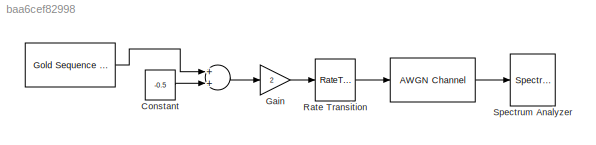
MODEL slx_baa6cef82998
KIND model
BLOCK [Reference]    REF=commchan3/AWGN
Channel
  EbNodB = 10
  EsNodB = 10
  InputProcessing = Columns as channels (frame based)
  Ports = [1, 1]
  Ps = 1
  SNRdB = 10
  SourceBlock = commchan3/AWGN\nChannel
  SourceType = AWGN Channel
  Tsym = 1
  UserDataPersistent = on
  bitsPerSym = 1
  noiseMode = Variance from mask
  seed = randseed
  variance = 1
BLOCK [Reference]     REF=commseqgen2/Gold Sequence
Generator
  Ports = [0, 1]
  SourceBlock = commseqgen2/Gold Sequence\nGenerator
  SourceType = Gold Sequence Generator
  frameBased = off
  genPoly1 = [1 0 0 1 0 1]
  genPoly2 = [1 1 1 1 0 1]
  index = 0
  iniState1 = [1 1 1 0 1]
  iniState2 = [1 0 0 0 1]
  maxOutSize = [10 1]
  maxOutSizeMode = Dialog parameter
  outDataType = double
  outVarSiz = off
  reset = off
  sampPerFrame = 1
  shift = 0
  ts = 1e-3
BLOCK [Sum]     
  InputSameDT = off
  OutDataTypeStr = Inherit: Inherit via internal rule
  Ports = [2, 1]
  SaturateOnIntegerOverflow = off
BLOCK [Constant] Constant
  Value = -0.5
BLOCK [Gain] Gain
  Gain = 2
  OutDataTypeStr = Inherit: Inherit via internal rule
  ParamDataTypeStr = Inherit: Inherit via internal rule
  SaturateOnIntegerOverflow = off
BLOCK [RateTransition] Rate Transition
  OutPortSampleTime = 1e-6
BLOCK [SpectrumAnalyzer] Spectrum Analyzer
  Ports = [1]
  ScopeSpecificationString = spbscopes.SpectrumAnalyzerBlockCfg('CurrentConfiguration', extmgr.ConfigurationSet(extmgr.Configuration('Core','General UI',true,'FigureColor',[0.313725490196078 0.313725490196078 0.313725490196078]),extmgr.Configuration('Core','Source UI',true),extmgr.Configuration('Sources','WiredSimulink',true),extmgr.Configuration('Sources','Simulink',false),extmgr.Configuration('Sources','File',false),extmgr....<+7043ch>
LINE     :1 -> Gain:1
LINE   :1 ->     :1
LINE  :1 -> Spectrum Analyzer:1
LINE Constant:1 ->     :2
LINE Gain:1 -> Rate Transition:1
LINE Rate Transition:1 ->  :1
